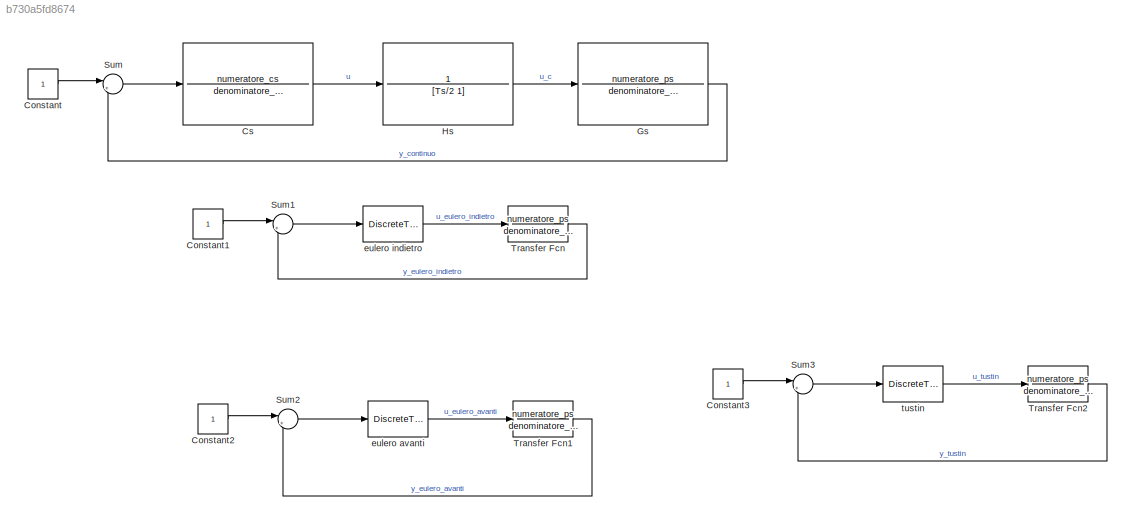
MODEL slx_b730a5fd8674
KIND model
CONFIG AbsTol = auto
CONFIG EnableMultiTasking = off
CONFIG FixedStep = auto
CONFIG MaxStep = auto
CONFIG MinStep = auto
CONFIG RelTol = 1e-3
CONFIG SampleTimeConstraint = Unconstrained
CONFIG SolverName = VariableStepAuto
CONFIG StartTime = 0.0
CONFIG StopTime = 10.0
BLOCK [Constant] Constant
BLOCK [Constant] Constant1
BLOCK [Constant] Constant2
BLOCK [Constant] Constant3
BLOCK [TransferFcn] Cs
  Denominator = denominatore_cs
  Numerator = numeratore_cs
BLOCK [TransferFcn] Gs
  Denominator = denominatore_ps
  NameLocation = left
  Numerator = numeratore_ps
BLOCK [TransferFcn] Hs
  Denominator = [Ts/2 1]
  Numerator = 1
BLOCK [Sum] Sum
  Inputs = |+-
BLOCK [Sum] Sum1
  Inputs = |+-
BLOCK [Sum] Sum2
  Inputs = |+-
BLOCK [Sum] Sum3
  Inputs = |+-
BLOCK [TransferFcn] Transfer Fcn
  Denominator = denominatore_ps
  Numerator = numeratore_ps
BLOCK [TransferFcn] Transfer Fcn1
  Denominator = denominatore_ps
  Numerator = numeratore_ps
BLOCK [TransferFcn] Transfer Fcn2
  Denominator = denominatore_ps
  Numerator = numeratore_ps
BLOCK [DiscreteTransferFcn] eulero avanti
  Denominator = denominatore_eulero_avanti
  InputPortMap = u0
  Numerator = numeratore_eulero_avanti
BLOCK [DiscreteTransferFcn] eulero indietro
  Denominator = denominatore_eulero_indietro
  InputPortMap = u0
  Numerator = numeratore_eulero_indietro
BLOCK [DiscreteTransferFcn] tustin
  Denominator = denominatore_eulero_avanti
  InputPortMap = u0
  Numerator = numeratore_eulero_avanti
LINE Constant1:1 -> Sum1:1
LINE Constant2:1 -> Sum2:1
LINE Constant3:1 -> Sum3:1
LINE Constant:1 -> Sum:1
LINE Cs:1 -> Hs:1
LINE Gs:1 -> Sum:2
LINE Hs:1 -> Gs:1
LINE Sum1:1 -> eulero indietro:1
LINE Sum2:1 -> eulero avanti:1
LINE Sum3:1 -> tustin:1
LINE Sum:1 -> Cs:1
LINE Transfer Fcn1:1 -> Sum2:2
LINE Transfer Fcn2:1 -> Sum3:2
LINE Transfer Fcn:1 -> Sum1:2
LINE eulero avanti:1 -> Transfer Fcn1:1
LINE eulero indietro:1 -> Transfer Fcn:1
LINE tustin:1 -> Transfer Fcn2:1
